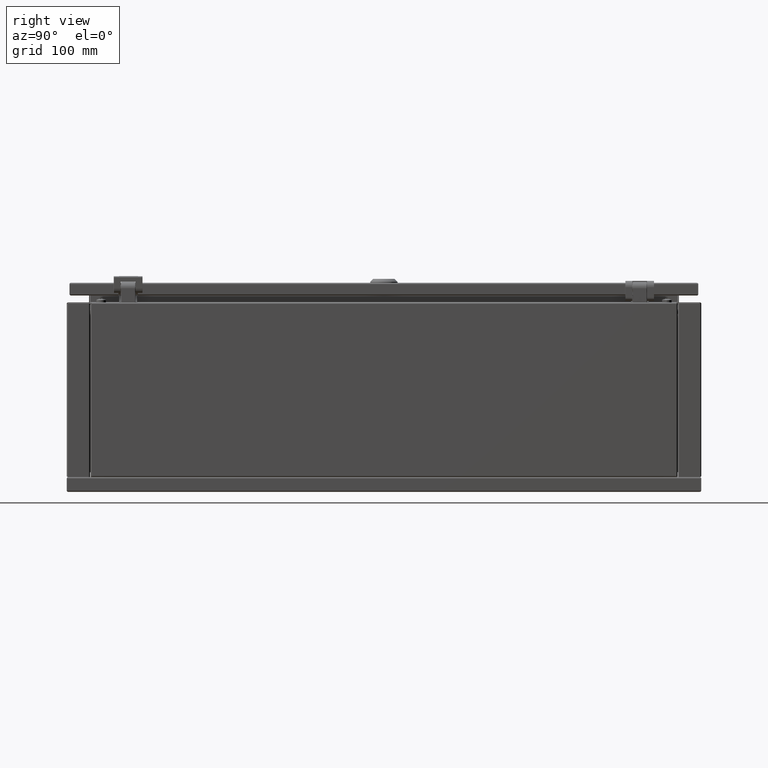
[diagram: clean part render]
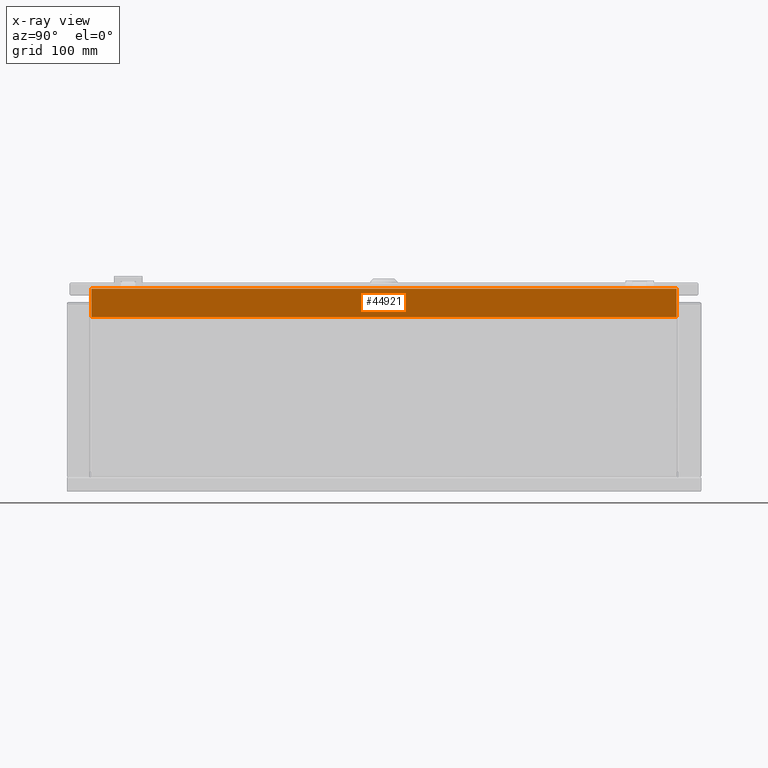
[diagram: x-ray — body ghosted, one internal face saturated and labeled with its STEP entity id]
A machine part, right view, then the same camera in x-ray: the body is ghosted and one INTERNAL B-rep face — a face not visible from any outside direction — is saturated and labeled: STEP entity #44921.
In plain terms, the highlighted planar face has unit normal (-1, 0, 0).
Its self-contained STEP definition (entity closure, byte-faithful):
#3466 = ORIENTED_EDGE ( 'NONE', *, *, #11753, .F. ) ;
#5038 = CARTESIAN_POINT ( 'NONE',  ( 125.0000000000020000, 1.110223024625156100E-012, 178.0500000000000100 ) ) ;
#6173 = DIRECTION ( 'NONE',  ( -1.000000000000000000, 1.665334536937775000E-016, 3.965082230804130600E-015 ) ) ;
#7064 = EDGE_CURVE ( 'NONE', #66985, #76123, #29058, .T. ) ;
#8525 = CARTESIAN_POINT ( 'NONE',  ( 125.0000000000020000, -299.7500000000000000, 178.0500000000000100 ) ) ;
#8870 = AXIS2_PLACEMENT_3D ( 'NONE', #37508, #6173, #50074 ) ;
#11753 = EDGE_CURVE ( 'NONE', #15192, #66985, #31506, .T. ) ;
#12350 = VECTOR ( 'NONE', #25661, 1000.000000000000000 ) ;
#13224 = VECTOR ( 'NONE', #19231, 1000.000000000000000 ) ;
#15192 = VERTEX_POINT ( 'NONE', #8525 ) ;
#19231 = DIRECTION ( 'NONE',  ( -1.665334536937764900E-016, -1.000000000000000000, 1.781368584288299900E-016 ) ) ;
#25661 = DIRECTION ( 'NONE',  ( 3.954062174942385400E-015, 2.706957150616835200E-016, 1.000000000000000000 ) ) ;
#26411 = CARTESIAN_POINT ( 'NONE',  ( 125.0000000000020000, 299.7500000000000000, 178.0500000000000100 ) ) ;
#29058 = LINE ( 'NONE', #32509, #12350 ) ;
#31506 = LINE ( 'NONE', #5038, #59992 ) ;
#31939 = LINE ( 'NONE', #56908, #53485 ) ;
#32240 = DIRECTION ( 'NONE',  ( -3.954062174942385400E-015, -2.706957150616835200E-016, -1.000000000000000000 ) ) ;
#32509 = CARTESIAN_POINT ( 'NONE',  ( 125.0000000000020000, 299.7500000000000000, 192.5250000000000100 ) ) ;
#33686 = EDGE_CURVE ( 'NONE', #44866, #15192, #31939, .T. ) ;
#37245 = FACE_OUTER_BOUND ( 'NONE', #66224, .T. ) ;
#37508 = CARTESIAN_POINT ( 'NONE',  ( 125.0000000000020000, 1.110223024625156100E-012, 192.5250000000000100 ) ) ;
#41326 = ORIENTED_EDGE ( 'NONE', *, *, #33686, .F. ) ;
#41896 = EDGE_CURVE ( 'NONE', #76123, #44866, #70113, .T. ) ;
#43215 = DIRECTION ( 'NONE',  ( 1.665334536937764900E-016, 1.000000000000000000, -1.781368584288299900E-016 ) ) ;
#44866 = VERTEX_POINT ( 'NONE', #62410 ) ;
#44921 = ADVANCED_FACE ( 'NONE', ( #37245 ), #68691, .T. ) ;
#48940 = CARTESIAN_POINT ( 'NONE',  ( 125.0000000000020000, 1.110223024625156100E-012, 207.0000000000000000 ) ) ;
#50074 = DIRECTION ( 'NONE',  ( -1.665334536937769800E-016, -1.000000000000000000, 1.318389841742359800E-016 ) ) ;
#53485 = VECTOR ( 'NONE', #32240, 1000.000000000000000 ) ;
#56908 = CARTESIAN_POINT ( 'NONE',  ( 125.0000000000020000, -299.7500000000000000, 192.5250000000000100 ) ) ;
#59992 = VECTOR ( 'NONE', #43215, 1000.000000000000000 ) ;
#61398 = ORIENTED_EDGE ( 'NONE', *, *, #7064, .F. ) ;
#62410 = CARTESIAN_POINT ( 'NONE',  ( 125.0000000000020000, -299.7500000000000000, 207.0000000000000000 ) ) ;
#63124 = ORIENTED_EDGE ( 'NONE', *, *, #41896, .F. ) ;
#66224 = EDGE_LOOP ( 'NONE', ( #3466, #41326, #63124, #61398 ) ) ;
#66546 = CARTESIAN_POINT ( 'NONE',  ( 125.0000000000020000, 299.7500000000000000, 207.0000000000000000 ) ) ;
#66985 = VERTEX_POINT ( 'NONE', #26411 ) ;
#68691 = PLANE ( 'NONE',  #8870 ) ;
#70113 = LINE ( 'NONE', #48940, #13224 ) ;
#76123 = VERTEX_POINT ( 'NONE', #66546 ) ;